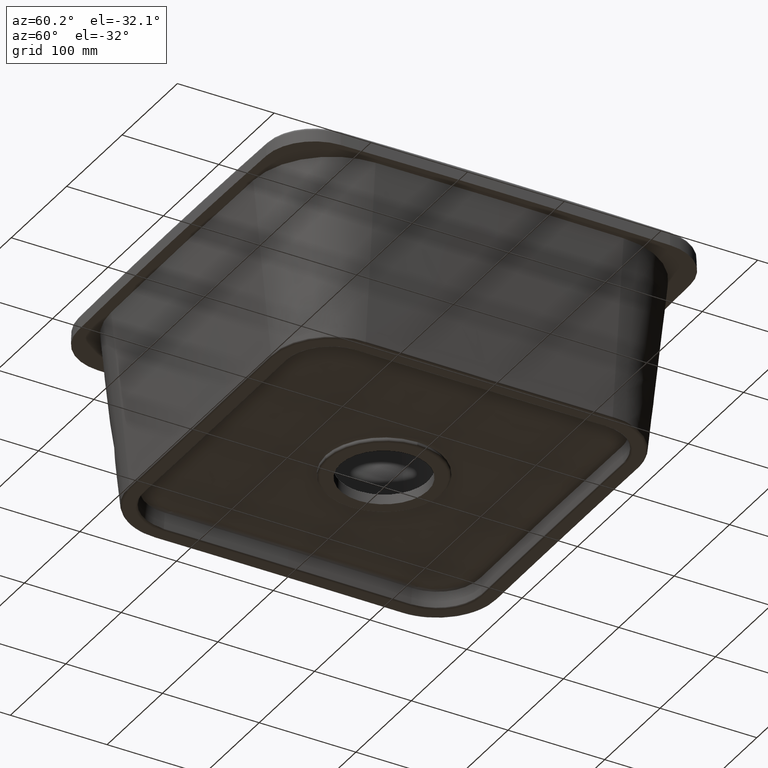
[diagram: clean part render]
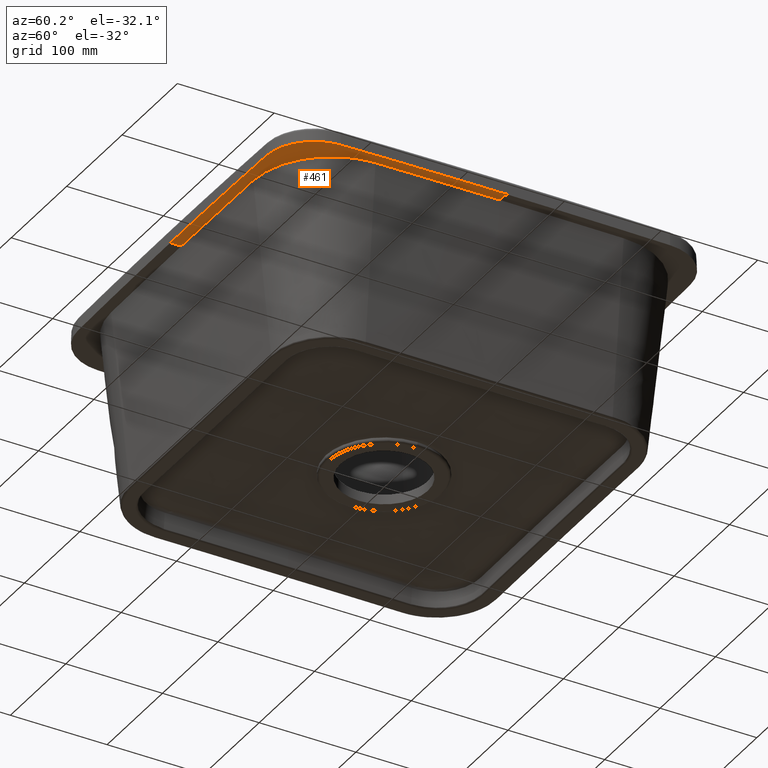
[diagram: same view with one face highlighted and labeled with its STEP entity id]
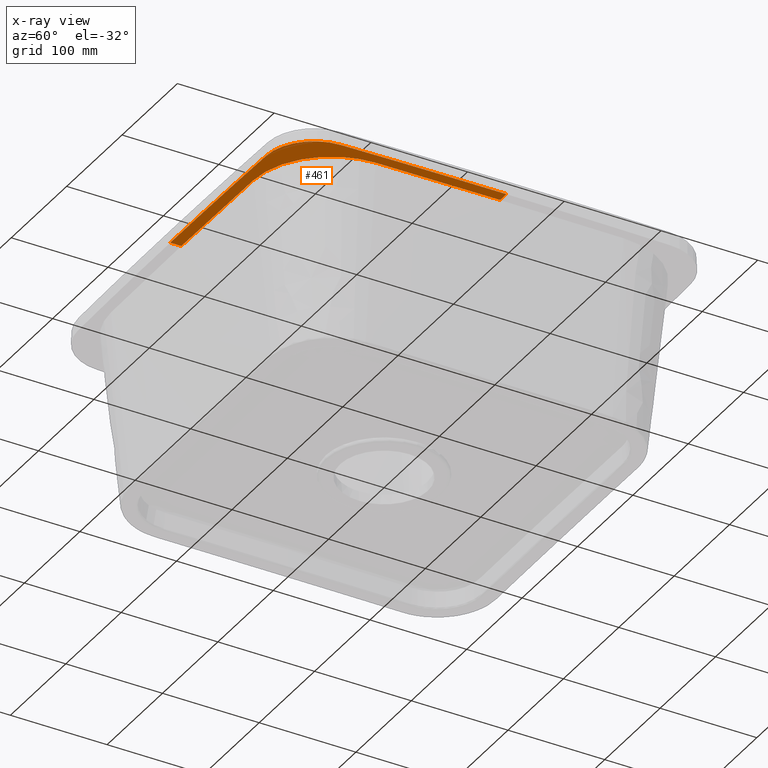
[diagram: x-ray of the same camera — body ghosted, the highlighted face saturated]
A machine part, auxiliary view. The second image highlights one B-rep face of the part: STEP entity #461.
The next image is the same camera in x-ray: the body ghosted, the highlighted face saturated — about 0% of this face is hidden behind the body in this view.
In plain terms, the highlighted planar face has unit normal (0, 0, 1).
Its self-contained STEP definition (entity closure, byte-faithful):
#116=PLANE('',#3020);
#247=CIRCLE('',#3017,8158.);
#248=CIRCLE('',#3018,50.);
#249=CIRCLE('',#3019,8158.);
#461=ADVANCED_FACE('',(#739),#116,.F.);
#739=FACE_OUTER_BOUND('',#939,.T.);
#939=EDGE_LOOP('',(#1456,#1457,#1458,#1459,#1460,#1461,#1462,#1463));
#1456=ORIENTED_EDGE('',*,*,#2429,.T.);
#1457=ORIENTED_EDGE('',*,*,#2408,.T.);
#1458=ORIENTED_EDGE('',*,*,#2410,.T.);
#1459=ORIENTED_EDGE('',*,*,#2411,.T.);
#1460=ORIENTED_EDGE('',*,*,#2424,.T.);
#1461=ORIENTED_EDGE('',*,*,#2433,.F.);
#1462=ORIENTED_EDGE('',*,*,#2434,.F.);
#1463=ORIENTED_EDGE('',*,*,#2435,.F.);
#2064=VERTEX_POINT('',#11110);
#2073=VERTEX_POINT('',#11607);
#2074=VERTEX_POINT('',#11632);
#2075=VERTEX_POINT('',#11657);
#2083=VERTEX_POINT('',#11822);
#2087=VERTEX_POINT('',#11837);
#2090=VERTEX_POINT('',#11845);
#2091=VERTEX_POINT('',#11847);
#2408=EDGE_CURVE('',#2073,#2074,#2820,.T.);
#2410=EDGE_CURVE('',#2074,#2075,#2822,.T.);
#2411=EDGE_CURVE('',#2075,#2064,#2823,.T.);
#2424=EDGE_CURVE('',#2064,#2083,#2825,.T.);
#2429=EDGE_CURVE('',#2087,#2073,#2827,.T.);
#2433=EDGE_CURVE('',#2090,#2083,#247,.T.);
#2434=EDGE_CURVE('',#2091,#2090,#248,.T.);
#2435=EDGE_CURVE('',#2087,#2091,#249,.T.);
#2820=B_SPLINE_CURVE_WITH_KNOTS('',3,(#11633,#11634,#11635,#11636),
 .UNSPECIFIED.,.F.,.F.,(4,4),(0.,1.),.UNSPECIFIED.);
#2822=B_SPLINE_CURVE_WITH_KNOTS('',3,(#11658,#11659,#11660,#11661,#11662,
#11663,#11664,#11665,#11666,#11667,#11668,#11669,#11670,#11671,#11672,#11673,
#11674,#11675,#11676,#11677),.UNSPECIFIED.,.F.,.F.,(4,2,2,2,2,2,2,2,2,4),
(0.,0.124999999999999,0.187499999999999,0.25,0.375,0.5,0.625,0.75,0.875,
1.),.UNSPECIFIED.);
#2823=B_SPLINE_CURVE_WITH_KNOTS('',3,(#11778,#11779,#11780,#11781),
 .UNSPECIFIED.,.F.,.F.,(4,4),(0.,1.),.UNSPECIFIED.);
#2825=B_SPLINE_CURVE_WITH_KNOTS('',1,(#11823,#11824),.UNSPECIFIED.,.F.,
 .F.,(2,2),(0.,1.),.UNSPECIFIED.);
#2827=B_SPLINE_CURVE_WITH_KNOTS('',1,(#11835,#11836),.UNSPECIFIED.,.F.,
 .F.,(2,2),(0.,1.),.UNSPECIFIED.);
#3017=AXIS2_PLACEMENT_3D('',#11844,#3255,#3256);
#3018=AXIS2_PLACEMENT_3D('',#11846,#3257,#3258);
#3019=AXIS2_PLACEMENT_3D('',#11848,#3259,#3260);
#3020=AXIS2_PLACEMENT_3D('',#11849,#3261,#3262);
#3255=DIRECTION('',(0.,0.,1.));
#3256=DIRECTION('',(-1.,0.,0.));
#3257=DIRECTION('',(0.,0.,1.));
#3258=DIRECTION('',(1.,0.,0.));
#3259=DIRECTION('',(0.,0.,1.));
#3260=DIRECTION('',(1.,0.,0.));
#3261=DIRECTION('',(0.,0.,1.));
#3262=DIRECTION('',(1.,0.,0.));
#11110=CARTESIAN_POINT('',(209.645351537579,1.41874350057321E-13,159.736));
#11607=CARTESIAN_POINT('',(2.55069922341286E-11,-209.645351538213,159.736));
#11632=CARTESIAN_POINT('',(128.263804939825,-208.733982465318,159.735999999908));
#11633=CARTESIAN_POINT('',(-7.65175914801684E-11,-209.645351538213,159.736));
#11634=CARTESIAN_POINT('',(42.7393987258252,-209.645351538213,159.736));
#11635=CARTESIAN_POINT('',(85.4940004091214,-209.341561846646,159.736));
#11636=CARTESIAN_POINT('',(128.263805049812,-208.733982463511,159.736));
#11657=CARTESIAN_POINT('',(208.733982461692,-128.263805117307,159.736000000098));
#11658=CARTESIAN_POINT('',(128.263804984523,-208.733982464959,159.736));
#11659=CARTESIAN_POINT('',(133.520196961424,-208.659311223079,159.736));
#11660=CARTESIAN_POINT('',(138.73688846004,-208.07926758757,159.736));
#11661=CARTESIAN_POINT('',(146.424469356826,-206.467477360802,159.736));
#11662=CARTESIAN_POINT('',(148.93712162276,-205.814058173825,159.736));
#11663=CARTESIAN_POINT('',(153.973250060225,-204.240356017677,159.736));
#11664=CARTESIAN_POINT('',(156.46413953317,-203.326388624805,159.736));
#11665=CARTESIAN_POINT('',(163.707519803537,-200.265577604437,159.736));
#11666=CARTESIAN_POINT('',(168.284594021499,-197.791274808976,159.736));
#11667=CARTESIAN_POINT('',(177.01539453992,-191.921125737327,159.736));
#11668=CARTESIAN_POINT('',(181.102104123748,-188.556148188241,159.736));
#11669=CARTESIAN_POINT('',(188.519658706946,-181.143707719529,159.736));
#11670=CARTESIAN_POINT('',(191.822026252776,-177.145398871952,159.736));
#11671=CARTESIAN_POINT('',(197.726224433052,-168.398255912834,159.736));
#11672=CARTESIAN_POINT('',(200.229834532608,-163.78046519018,159.736));
#11673=CARTESIAN_POINT('',(204.328810442838,-154.103406691615,159.736));
#11674=CARTESIAN_POINT('',(205.891404378791,-149.136295005665,159.736));
#11675=CARTESIAN_POINT('',(208.072275390594,-138.805298950368,159.736));
#11676=CARTESIAN_POINT('',(208.658957890164,-133.545069334917,159.736));
#11677=CARTESIAN_POINT('',(208.733982463972,-128.263804985115,159.736));
#11778=CARTESIAN_POINT('',(208.733982462233,-128.263805050399,159.736));
#11779=CARTESIAN_POINT('',(209.341561845797,-85.4940003945458,159.736));
#11780=CARTESIAN_POINT('',(209.645351537579,-42.7393987110793,159.736));
#11781=CARTESIAN_POINT('',(209.645351537579,0.,159.736));
#11822=CARTESIAN_POINT('',(220.999999999972,1.02746382170273E-12,159.736));
#11823=CARTESIAN_POINT('',(209.645351537579,4.20013840515218E-13,159.736));
#11824=CARTESIAN_POINT('',(220.999999999973,1.0274555728787E-12,159.736));
#11835=CARTESIAN_POINT('',(-5.27938641154552E-13,-220.999999999973,159.736));
#11836=CARTESIAN_POINT('',(7.65175914801684E-11,-209.645351538213,159.736));
#11837=CARTESIAN_POINT('',(-2.84093361943607E-14,-220.999999999972,159.736));
#11844=CARTESIAN_POINT('',(-7937.00000000003,-2.8421709430404E-14,159.736));
#11845=CARTESIAN_POINT('',(219.222756348778,-170.277270408837,159.736));
#11846=CARTESIAN_POINT('',(169.233648991895,-169.233648991894,159.736));
#11847=CARTESIAN_POINT('',(170.277270408964,-219.222756348776,159.736));
#11848=CARTESIAN_POINT('',(2.8421709430404E-14,7937.00000000003,159.736));
#11849=CARTESIAN_POINT('',(2.8421709430404E-14,7937.00000000003,159.736));